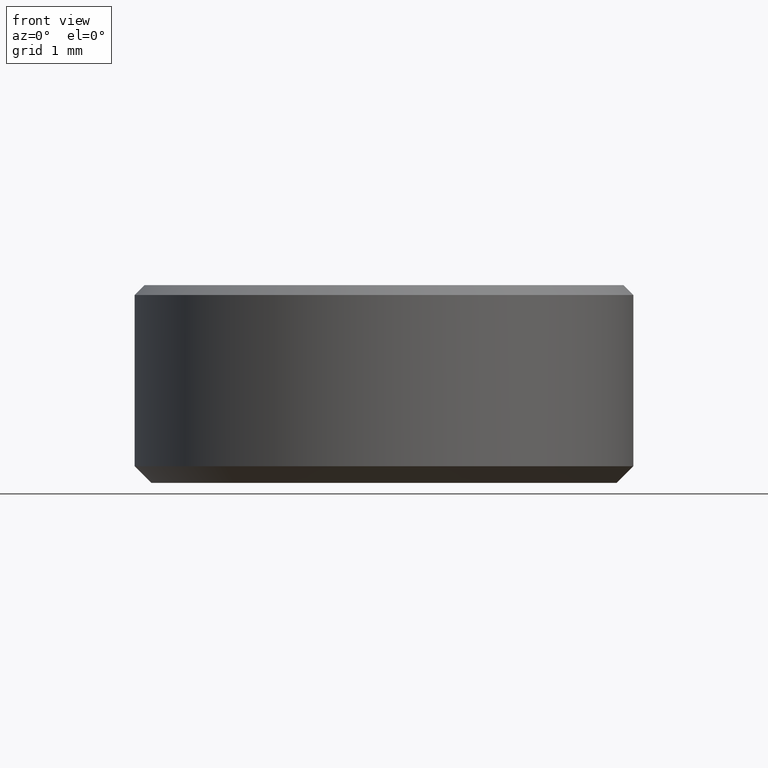
[diagram: clean part render]
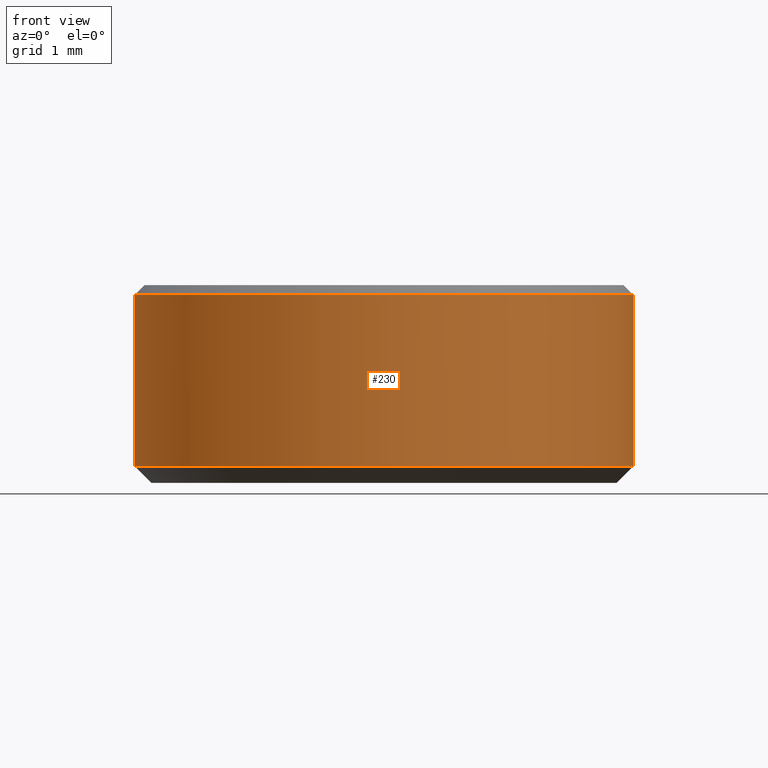
[diagram: same view with one face highlighted and labeled with its STEP entity id]
A machine part, front view. The second image highlights one B-rep face of the part: STEP entity #230.
In plain terms, the highlighted cylindrical surface (partial cylindrical patch) has radius 3 mm, axis along (-0, -0, 1).
Its self-contained STEP definition (entity closure, byte-faithful):
#1 = CIRCLE ( 'NONE', #142, 3.000000000000000000 ) ;
#18 = CARTESIAN_POINT ( 'NONE',  ( 3.000000000000000000, 0.000000000000000000, 0.2000000000000016209 ) ) ;
#20 = LINE ( 'NONE', #246, #216 ) ;
#30 = CARTESIAN_POINT ( 'NONE',  ( -3.000000000000000000, 3.673940397442059868E-16, 2.260000000000000675 ) ) ;
#33 = VERTEX_POINT ( 'NONE', #30 ) ;
#34 = AXIS2_PLACEMENT_3D ( 'NONE', #190, #41, #57 ) ;
#41 = DIRECTION ( 'NONE',  ( 0.000000000000000000, 0.000000000000000000, -1.000000000000000000 ) ) ;
#53 = AXIS2_PLACEMENT_3D ( 'NONE', #82, #167, #66 ) ;
#54 = ORIENTED_EDGE ( 'NONE', *, *, #144, .T. ) ;
#57 = DIRECTION ( 'NONE',  ( -1.000000000000000000, 0.000000000000000000, 0.000000000000000000 ) ) ;
#58 = DIRECTION ( 'NONE',  ( -0.000000000000000000, -0.000000000000000000, 1.000000000000000000 ) ) ;
#61 = VERTEX_POINT ( 'NONE', #172 ) ;
#66 = DIRECTION ( 'NONE',  ( 1.000000000000000000, 0.000000000000000000, 0.000000000000000000 ) ) ;
#82 = CARTESIAN_POINT ( 'NONE',  ( 0.000000000000000000, 0.000000000000000000, 1.500000000000000000 ) ) ;
#87 = CARTESIAN_POINT ( 'NONE',  ( 0.000000000000000000, 0.000000000000000000, 0.2000000000000016209 ) ) ;
#99 = LINE ( 'NONE', #178, #143 ) ;
#105 = VERTEX_POINT ( 'NONE', #18 ) ;
#110 = FACE_OUTER_BOUND ( 'NONE', #191, .T. ) ;
#142 = AXIS2_PLACEMENT_3D ( 'NONE', #87, #192, #231 ) ;
#143 = VECTOR ( 'NONE', #58, 1000.000000000000000 ) ;
#144 = EDGE_CURVE ( 'NONE', #227, #105, #1, .T. ) ;
#148 = ORIENTED_EDGE ( 'NONE', *, *, #252, .T. ) ;
#167 = DIRECTION ( 'NONE',  ( -0.000000000000000000, -0.000000000000000000, 1.000000000000000000 ) ) ;
#172 = CARTESIAN_POINT ( 'NONE',  ( 3.000000000000000000, 0.000000000000000000, 2.260000000000000675 ) ) ;
#178 = CARTESIAN_POINT ( 'NONE',  ( -3.000000000000000000, 3.673940397442059868E-16, 1.500000000000000000 ) ) ;
#187 = CYLINDRICAL_SURFACE ( 'NONE', #53, 3.000000000000000000 ) ;
#190 = CARTESIAN_POINT ( 'NONE',  ( 0.000000000000000000, 0.000000000000000000, 2.260000000000000675 ) ) ;
#191 = EDGE_LOOP ( 'NONE', ( #204, #54, #218, #148 ) ) ;
#192 = DIRECTION ( 'NONE',  ( -0.000000000000000000, -0.000000000000000000, 1.000000000000000000 ) ) ;
#204 = ORIENTED_EDGE ( 'NONE', *, *, #254, .F. ) ;
#205 = CARTESIAN_POINT ( 'NONE',  ( -3.000000000000000000, 3.673940397442059868E-16, 0.2000000000000016209 ) ) ;
#216 = VECTOR ( 'NONE', #221, 1000.000000000000000 ) ;
#218 = ORIENTED_EDGE ( 'NONE', *, *, #265, .T. ) ;
#221 = DIRECTION ( 'NONE',  ( -0.000000000000000000, -0.000000000000000000, 1.000000000000000000 ) ) ;
#227 = VERTEX_POINT ( 'NONE', #205 ) ;
#230 = ADVANCED_FACE ( 'NONE', ( #110 ), #187, .T. ) ;
#231 = DIRECTION ( 'NONE',  ( 1.000000000000000000, 0.000000000000000000, 0.000000000000000000 ) ) ;
#246 = CARTESIAN_POINT ( 'NONE',  ( 3.000000000000000000, 0.000000000000000000, 1.500000000000000000 ) ) ;
#252 = EDGE_CURVE ( 'NONE', #61, #33, #266, .T. ) ;
#254 = EDGE_CURVE ( 'NONE', #227, #33, #99, .T. ) ;
#265 = EDGE_CURVE ( 'NONE', #105, #61, #20, .T. ) ;
#266 = CIRCLE ( 'NONE', #34, 3.000000000000000000 ) ;